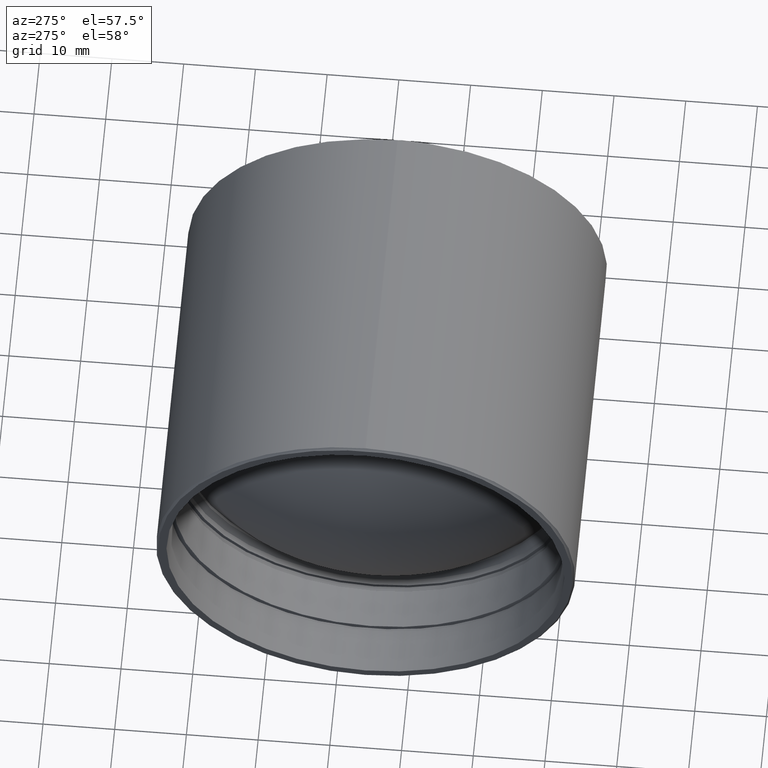
[diagram: clean part render]
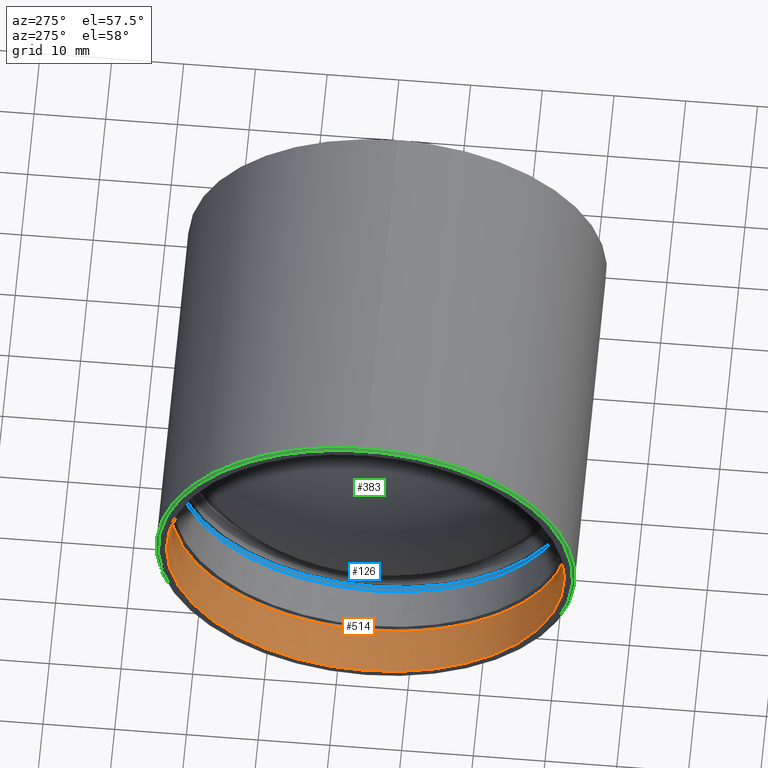
[diagram: same view with three faces highlighted in distinct colors, each labeled with its STEP entity id]
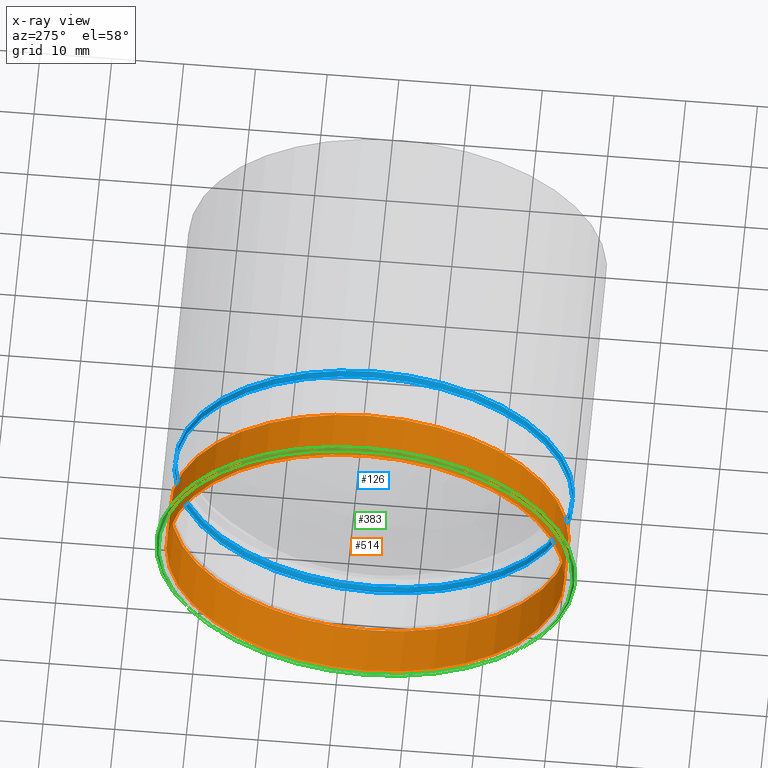
[diagram: x-ray of the same camera — body ghosted, the three highlighted faces saturated]
A machine part, auxiliary view with three faces highlighted in distinct colors.
The next image is the same camera in x-ray (body ghosted, the three faces saturated) — at least one of them is partly hidden behind the body in this view.
Their STEP definitions:

[orange] entity #514 — the highlighted cylindrical surface (bore or boss wall) has radius 27.75 mm, axis along (-1, -0, -0).
#2 = FACE_OUTER_BOUND ( 'NONE', #509, .T. ) ;
#37 = CIRCLE ( 'NONE', #277, 27.75000000004411405 ) ;
#84 = EDGE_CURVE ( 'NONE', #565, #565, #37, .T. ) ;
#113 = CARTESIAN_POINT ( 'NONE',  ( 7868.129146359433435, -204.0133481055009383, 0.000000000000000000 ) ) ;
#127 = VERTEX_POINT ( 'NONE', #466 ) ;
#193 = DIRECTION ( 'NONE',  ( 1.000000000000000000, 0.000000000000000000, 0.000000000000000000 ) ) ;
#220 = DIRECTION ( 'NONE',  ( 0.000000000000000000, 0.000000000000000000, 1.000000000000000000 ) ) ;
#222 = CARTESIAN_POINT ( 'NONE',  ( 7877.417387922358103, -204.0133481055009383, 0.000000000000000000 ) ) ;
#223 = DIRECTION ( 'NONE',  ( -1.000000000000000000, -0.000000000000000000, -0.000000000000000000 ) ) ;
#277 = AXIS2_PLACEMENT_3D ( 'NONE', #222, #223, #220 ) ;
#306 = ORIENTED_EDGE ( 'NONE', *, *, #553, .F. ) ;
#322 = EDGE_LOOP ( 'NONE', ( #526 ) ) ;
#327 = AXIS2_PLACEMENT_3D ( 'NONE', #445, #193, #355 ) ;
#339 = AXIS2_PLACEMENT_3D ( 'NONE', #113, #456, #503 ) ;
#347 = CARTESIAN_POINT ( 'NONE',  ( 7877.417387922358103, -204.0133481055009383, 27.75000000004411405 ) ) ;
#355 = DIRECTION ( 'NONE',  ( 0.000000000000000000, 0.000000000000000000, 1.000000000000000000 ) ) ;
#445 = CARTESIAN_POINT ( 'NONE',  ( 7870.817387922366834, -204.0133481055009383, 0.000000000000000000 ) ) ;
#456 = DIRECTION ( 'NONE',  ( -1.000000000000000000, -0.000000000000000000, -0.000000000000000000 ) ) ;
#466 = CARTESIAN_POINT ( 'NONE',  ( 7870.817387922366834, -204.0133481055009383, 27.75000000004411405 ) ) ;
#503 = DIRECTION ( 'NONE',  ( 0.000000000000000000, 0.000000000000000000, 1.000000000000000000 ) ) ;
#509 = EDGE_LOOP ( 'NONE', ( #306 ) ) ;
#514 = ADVANCED_FACE ( 'NONE', ( #2, #562 ), #603, .F. ) ;
#526 = ORIENTED_EDGE ( 'NONE', *, *, #84, .F. ) ;
#553 = EDGE_CURVE ( 'NONE', #127, #127, #609, .T. ) ;
#562 = FACE_OUTER_BOUND ( 'NONE', #322, .T. ) ;
#565 = VERTEX_POINT ( 'NONE', #347 ) ;
#603 = CYLINDRICAL_SURFACE ( 'NONE', #339, 27.75000000004411405 ) ;
#609 = CIRCLE ( 'NONE', #327, 27.75000000004411405 ) ;

[blue] entity #126 — the highlighted cylindrical surface (bore or boss wall) has radius 27.75 mm, axis along (-1, -0, -0).
#27 = CIRCLE ( 'NONE', #115, 27.74999999999999645 ) ;
#28 = CARTESIAN_POINT ( 'NONE',  ( 7884.717387922357375, -204.0133481055009383, 27.74999999999999645 ) ) ;
#66 = DIRECTION ( 'NONE',  ( 0.000000000000000000, 0.000000000000000000, 1.000000000000000000 ) ) ;
#92 = FACE_OUTER_BOUND ( 'NONE', #467, .T. ) ;
#115 = AXIS2_PLACEMENT_3D ( 'NONE', #418, #264, #465 ) ;
#126 = ADVANCED_FACE ( 'NONE', ( #588, #92 ), #288, .F. ) ;
#216 = ORIENTED_EDGE ( 'NONE', *, *, #314, .T. ) ;
#226 = AXIS2_PLACEMENT_3D ( 'NONE', #533, #241, #279 ) ;
#234 = CARTESIAN_POINT ( 'NONE',  ( 7883.717387922357375, -204.0133481055009383, 27.74999999999999645 ) ) ;
#241 = DIRECTION ( 'NONE',  ( -1.000000000000000000, -0.000000000000000000, -0.000000000000000000 ) ) ;
#264 = DIRECTION ( 'NONE',  ( -1.000000000000000000, -0.000000000000000000, -0.000000000000000000 ) ) ;
#279 = DIRECTION ( 'NONE',  ( 0.000000000000000000, 0.000000000000000000, 1.000000000000000000 ) ) ;
#288 = CYLINDRICAL_SURFACE ( 'NONE', #226, 27.74999999999999645 ) ;
#304 = EDGE_CURVE ( 'NONE', #569, #569, #555, .T. ) ;
#314 = EDGE_CURVE ( 'NONE', #329, #329, #27, .T. ) ;
#329 = VERTEX_POINT ( 'NONE', #234 ) ;
#338 = ORIENTED_EDGE ( 'NONE', *, *, #304, .F. ) ;
#402 = EDGE_LOOP ( 'NONE', ( #338 ) ) ;
#418 = CARTESIAN_POINT ( 'NONE',  ( 7883.717387922357375, -204.0133481055009383, 0.000000000000000000 ) ) ;
#434 = AXIS2_PLACEMENT_3D ( 'NONE', #568, #518, #66 ) ;
#465 = DIRECTION ( 'NONE',  ( 0.000000000000000000, 0.000000000000000000, 1.000000000000000000 ) ) ;
#467 = EDGE_LOOP ( 'NONE', ( #216 ) ) ;
#518 = DIRECTION ( 'NONE',  ( -1.000000000000000000, -0.000000000000000000, -0.000000000000000000 ) ) ;
#533 = CARTESIAN_POINT ( 'NONE',  ( 7868.129146359433435, -204.0133481055009383, 0.000000000000000000 ) ) ;
#555 = CIRCLE ( 'NONE', #434, 27.74999999999999645 ) ;
#568 = CARTESIAN_POINT ( 'NONE',  ( 7884.717387922357375, -204.0133481055009383, 0.000000000000000000 ) ) ;
#569 = VERTEX_POINT ( 'NONE', #28 ) ;
#588 = FACE_OUTER_BOUND ( 'NONE', #402, .T. ) ;

[green] entity #383 — the highlighted conical surface has half-angle 45 deg.
#6 = DIRECTION ( 'NONE',  ( 0.000000000000000000, 0.000000000000000000, -1.000000000000000000 ) ) ;
#91 = AXIS2_PLACEMENT_3D ( 'NONE', #182, #634, #442 ) ;
#101 = CARTESIAN_POINT ( 'NONE',  ( 7871.117387922360649, -204.0133481055009383, 0.000000000000000000 ) ) ;
#129 = VERTEX_POINT ( 'NONE', #310 ) ;
#166 = VERTEX_POINT ( 'NONE', #535 ) ;
#167 = ORIENTED_EDGE ( 'NONE', *, *, #577, .F. ) ;
#182 = CARTESIAN_POINT ( 'NONE',  ( 7871.117387922360649, -204.0133481055009383, 0.000000000000000000 ) ) ;
#183 = AXIS2_PLACEMENT_3D ( 'NONE', #101, #250, #212 ) ;
#212 = DIRECTION ( 'NONE',  ( 0.000000000000000000, 0.000000000000000000, 1.000000000000000000 ) ) ;
#250 = DIRECTION ( 'NONE',  ( 1.000000000000000000, 0.000000000000000000, 0.000000000000000000 ) ) ;
#251 = EDGE_LOOP ( 'NONE', ( #167 ) ) ;
#261 = CIRCLE ( 'NONE', #183, 29.20000000000001705 ) ;
#310 = CARTESIAN_POINT ( 'NONE',  ( 7871.117387922360649, -204.0133481055009383, 29.20000000000001705 ) ) ;
#383 = ADVANCED_FACE ( 'NONE', ( #433, #534 ), #595, .T. ) ;
#398 = DIRECTION ( 'NONE',  ( 1.000000000000000000, 0.000000000000000000, 0.000000000000000000 ) ) ;
#433 = FACE_OUTER_BOUND ( 'NONE', #251, .T. ) ;
#442 = DIRECTION ( 'NONE',  ( 0.000000000000000000, 0.000000000000000000, -1.000000000000000000 ) ) ;
#453 = ORIENTED_EDGE ( 'NONE', *, *, #575, .T. ) ;
#461 = CARTESIAN_POINT ( 'NONE',  ( 7870.817387922361377, -204.0133481055009383, 0.000000000000000000 ) ) ;
#491 = CIRCLE ( 'NONE', #531, 28.90000000000056346 ) ;
#531 = AXIS2_PLACEMENT_3D ( 'NONE', #461, #398, #6 ) ;
#534 = FACE_BOUND ( 'NONE', #559, .T. ) ;
#535 = CARTESIAN_POINT ( 'NONE',  ( 7870.817387922361377, -204.0133481055009383, -28.90000000000056346 ) ) ;
#559 = EDGE_LOOP ( 'NONE', ( #453 ) ) ;
#575 = EDGE_CURVE ( 'NONE', #166, #166, #491, .T. ) ;
#577 = EDGE_CURVE ( 'NONE', #129, #129, #261, .T. ) ;
#595 = CONICAL_SURFACE ( 'NONE', #91, 29.20000000000020179, 0.7853981633980092747 ) ;
#634 = DIRECTION ( 'NONE',  ( 1.000000000000000000, 0.000000000000000000, 0.000000000000000000 ) ) ;